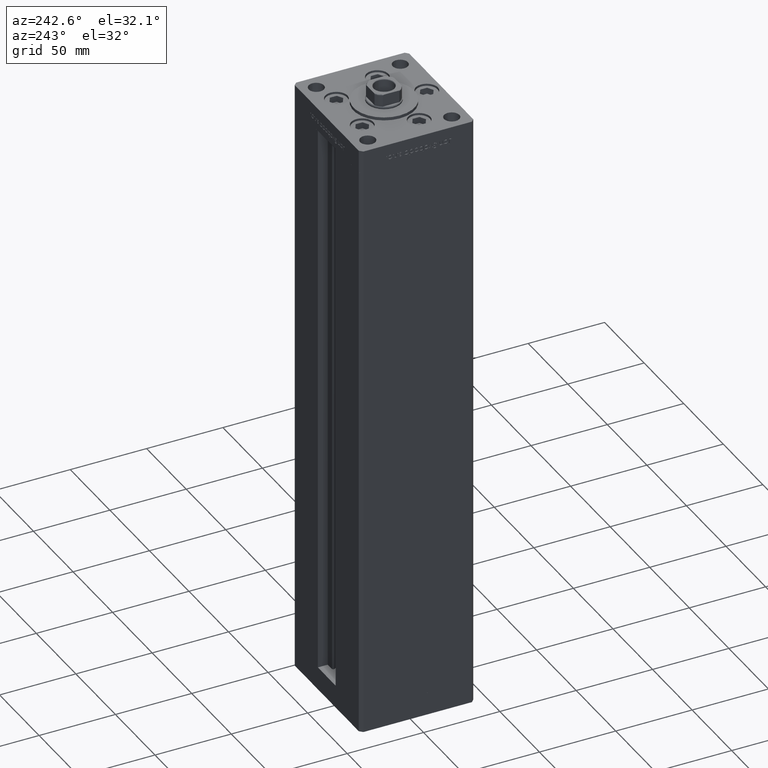
[diagram: clean part render]
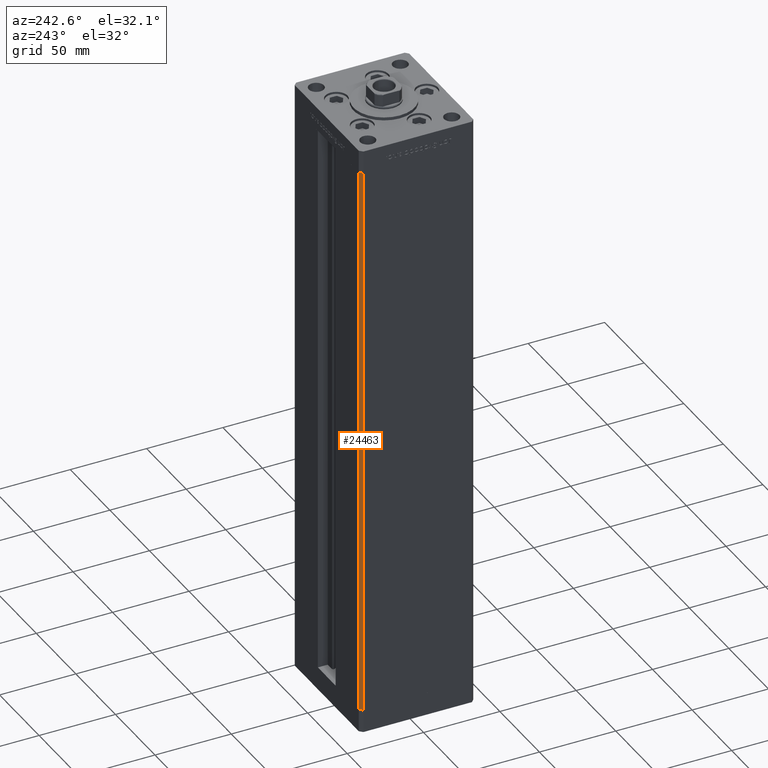
[diagram: same view with one face highlighted and labeled with its STEP entity id]
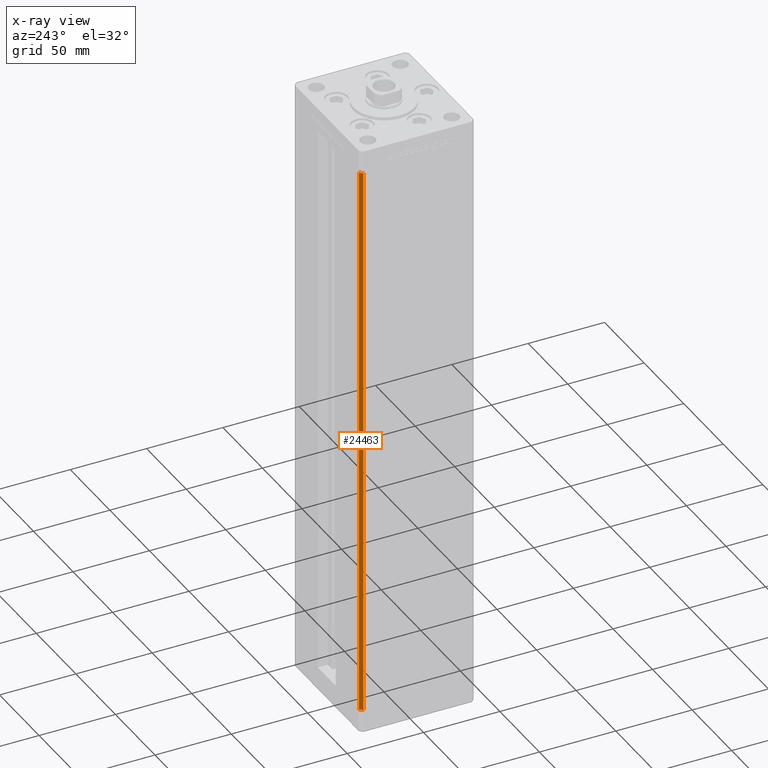
[diagram: x-ray of the same camera — body ghosted, the highlighted face saturated]
A machine part, auxiliary view. The second image highlights one B-rep face of the part: STEP entity #24463.
The next image is the same camera in x-ray: the body ghosted, the highlighted face saturated — about 0% of this face is hidden behind the body in this view.
In plain terms, the highlighted planar face has unit normal (0.7071, -0.7071, 0).
Its self-contained STEP definition (entity closure, byte-faithful):
#2224 = DIRECTION ( 'NONE',  ( -0.000000000000000000, -0.000000000000000000, -1.000000000000000000 ) ) ;
#2289 = CARTESIAN_POINT ( 'NONE',  ( -40.50000000000000000, 37.50000000000000711, 0.000000000000000000 ) ) ;
#5726 = VECTOR ( 'NONE', #2224, 1000.000000000000000 ) ;
#6449 = PLANE ( 'NONE',  #30403 ) ;
#10752 = VERTEX_POINT ( 'NONE', #11314 ) ;
#10903 = CARTESIAN_POINT ( 'NONE',  ( -40.50000000000000000, 37.50000000000000711, 368.5000000000000000 ) ) ;
#11314 = CARTESIAN_POINT ( 'NONE',  ( -40.50000000000000000, 37.50000000000000711, 368.5000000000000000 ) ) ;
#13201 = LINE ( 'NONE', #33255, #48066 ) ;
#17706 = LINE ( 'NONE', #34825, #31770 ) ;
#19989 = CARTESIAN_POINT ( 'NONE',  ( -42.50000000000000711, 35.50000000000001421, 0.000000000000000000 ) ) ;
#20315 = ORIENTED_EDGE ( 'NONE', *, *, #47634, .T. ) ;
#21914 = DIRECTION ( 'NONE',  ( -0.7071067811865500152, -0.7071067811865451302, 0.000000000000000000 ) ) ;
#23740 = EDGE_CURVE ( 'NONE', #36770, #36601, #13201, .T. ) ;
#24463 = ADVANCED_FACE ( 'NONE', ( #34421 ), #6449, .F. ) ;
#26316 = EDGE_LOOP ( 'NONE', ( #42902, #37023, #45462, #20315 ) ) ;
#26983 = EDGE_CURVE ( 'NONE', #46755, #36601, #29664, .T. ) ;
#29556 = DIRECTION ( 'NONE',  ( -0.7071067811865500152, -0.7071067811865451302, 0.000000000000000000 ) ) ;
#29664 = LINE ( 'NONE', #45758, #44768 ) ;
#30403 = AXIS2_PLACEMENT_3D ( 'NONE', #42335, #51014, #45779 ) ;
#31770 = VECTOR ( 'NONE', #21914, 1000.000000000000114 ) ;
#33255 = CARTESIAN_POINT ( 'NONE',  ( -40.50000000000000000, 37.50000000000000711, 0.000000000000000000 ) ) ;
#34421 = FACE_OUTER_BOUND ( 'NONE', #26316, .T. ) ;
#34825 = CARTESIAN_POINT ( 'NONE',  ( -40.50000000000000000, 37.50000000000000711, 368.5000000000000000 ) ) ;
#36601 = VERTEX_POINT ( 'NONE', #19989 ) ;
#36770 = VERTEX_POINT ( 'NONE', #2289 ) ;
#37023 = ORIENTED_EDGE ( 'NONE', *, *, #26983, .F. ) ;
#37845 = DIRECTION ( 'NONE',  ( -0.000000000000000000, -0.000000000000000000, -1.000000000000000000 ) ) ;
#39015 = CARTESIAN_POINT ( 'NONE',  ( -42.50000000000000711, 35.50000000000001421, 368.5000000000000000 ) ) ;
#41610 = EDGE_CURVE ( 'NONE', #10752, #46755, #17706, .T. ) ;
#42335 = CARTESIAN_POINT ( 'NONE',  ( -40.50000000000000000, 37.50000000000000711, 368.5000000000000000 ) ) ;
#42567 = LINE ( 'NONE', #10903, #5726 ) ;
#42902 = ORIENTED_EDGE ( 'NONE', *, *, #23740, .T. ) ;
#44768 = VECTOR ( 'NONE', #37845, 1000.000000000000000 ) ;
#45462 = ORIENTED_EDGE ( 'NONE', *, *, #41610, .F. ) ;
#45758 = CARTESIAN_POINT ( 'NONE',  ( -42.50000000000000711, 35.50000000000001421, 368.5000000000000000 ) ) ;
#45779 = DIRECTION ( 'NONE',  ( 0.7071067811865499042, 0.7071067811865451302, 0.000000000000000000 ) ) ;
#46755 = VERTEX_POINT ( 'NONE', #39015 ) ;
#47634 = EDGE_CURVE ( 'NONE', #10752, #36770, #42567, .T. ) ;
#48066 = VECTOR ( 'NONE', #29556, 1000.000000000000114 ) ;
#51014 = DIRECTION ( 'NONE',  ( 0.7071067811865451302, -0.7071067811865499042, 0.000000000000000000 ) ) ;